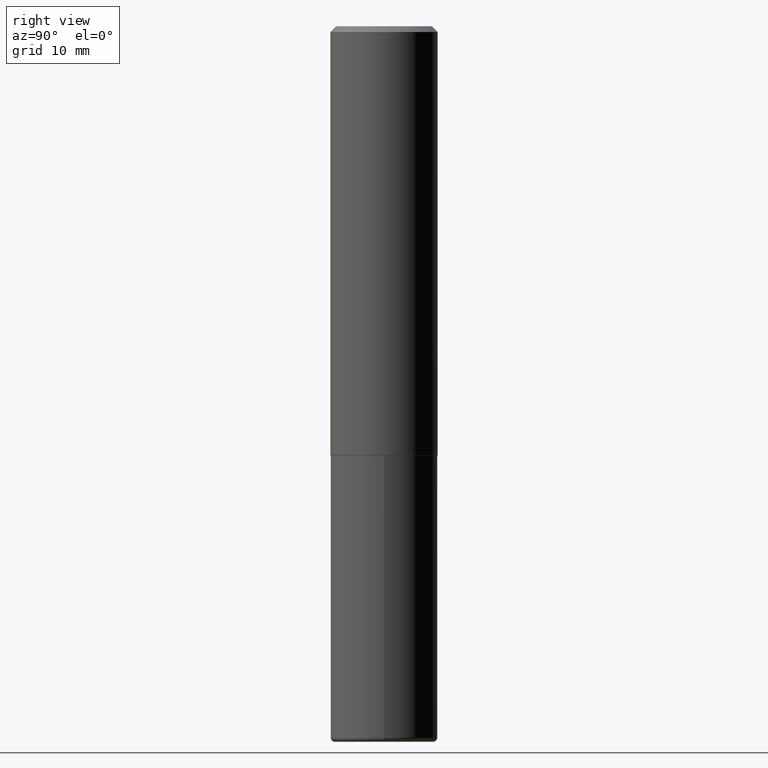
[diagram: clean part render]
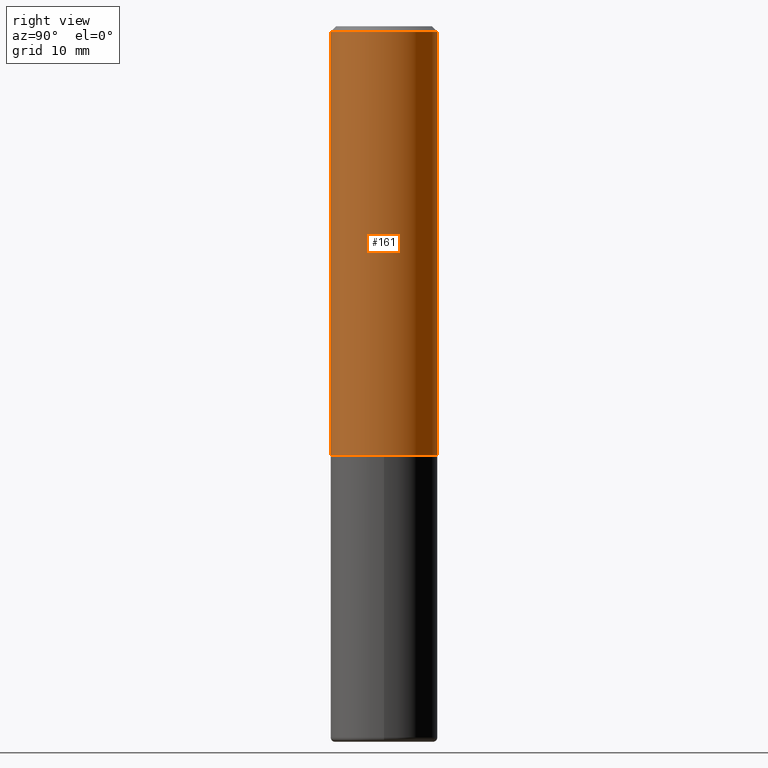
[diagram: same view with one face highlighted and labeled with its STEP entity id]
A machine part, right view. The second image highlights one B-rep face of the part: STEP entity #161.
In plain terms, the highlighted cylindrical surface (partial cylindrical patch) has radius 4.7625 mm, axis along (-0, 0, 1).
Its self-contained STEP definition (entity closure, byte-faithful):
#4 = DIRECTION ( 'NONE',  ( -2.444793606782976109E-29, 3.492448262817002669E-15, 1.000000000000000000 ) ) ;
#5 = DIRECTION ( 'NONE',  ( -2.444793606782976109E-29, 3.492448262817002669E-15, 1.000000000000000000 ) ) ;
#9 = ORIENTED_EDGE ( 'NONE', *, *, #224, .F. ) ;
#31 = VECTOR ( 'NONE', #362, 39.37007874015748143 ) ;
#40 = CARTESIAN_POINT ( 'NONE',  ( -1.309305502066175600E-15, -0.1875000000000000833, 6.548340492781882223E-16 ) ) ;
#44 = VERTEX_POINT ( 'NONE', #227 ) ;
#57 = CIRCLE ( 'NONE', #393, 0.1875000000000001943 ) ;
#81 = ORIENTED_EDGE ( 'NONE', *, *, #284, .F. ) ;
#98 = CARTESIAN_POINT ( 'NONE',  ( 0.000000000000000000, 0.000000000000000000, 0.000000000000000000 ) ) ;
#103 = DIRECTION ( 'NONE',  ( -6.982962677686265922E-15, -1.000000000000000000, 2.913971193241877611E-15 ) ) ;
#108 = CARTESIAN_POINT ( 'NONE',  ( 4.889587213565963568E-31, -6.984896525634020819E-17, -0.02000000000000004205 ) ) ;
#129 = LINE ( 'NONE', #237, #31 ) ;
#144 = AXIS2_PLACEMENT_3D ( 'NONE', #98, #4, #360 ) ;
#154 = VERTEX_POINT ( 'NONE', #210 ) ;
#161 = ADVANCED_FACE ( 'NONE', ( #203 ), #392, .T. ) ;
#163 = VECTOR ( 'NONE', #5, 39.37007874015748143 ) ;
#199 = AXIS2_PLACEMENT_3D ( 'NONE', #108, #357, #243 ) ;
#203 = FACE_OUTER_BOUND ( 'NONE', #404, .T. ) ;
#210 = CARTESIAN_POINT ( 'NONE',  ( 1.332267629550206781E-15, 0.1874999999999949485, -1.499000000000000554 ) ) ;
#215 = CARTESIAN_POINT ( 'NONE',  ( -1.286343374582161379E-15, -0.1875000000000000555, -0.01999999999999938979 ) ) ;
#220 = CARTESIAN_POINT ( 'NONE',  ( -1.309305502066139509E-15, -0.1875000000000054123, -1.498999999999999444 ) ) ;
#224 = EDGE_CURVE ( 'NONE', #312, #348, #296, .T. ) ;
#227 = CARTESIAN_POINT ( 'NONE',  ( 1.309305502066175205E-15, 0.1874999999999999167, -0.02000000000000069431 ) ) ;
#232 = EDGE_CURVE ( 'NONE', #154, #44, #129, .T. ) ;
#237 = CARTESIAN_POINT ( 'NONE',  ( 1.332267629550188243E-15, 0.1875000000000000833, -6.548340492781882223E-16 ) ) ;
#243 = DIRECTION ( 'NONE',  ( -6.982962677686266711E-15, -1.000000000000000000, 3.483106191921935949E-15 ) ) ;
#245 = ORIENTED_EDGE ( 'NONE', *, *, #232, .T. ) ;
#246 = EDGE_CURVE ( 'NONE', #312, #154, #57, .T. ) ;
#263 = CARTESIAN_POINT ( 'NONE',  ( 3.664745616567681106E-29, -5.235179945962687995E-15, -1.499000000000000110 ) ) ;
#284 = EDGE_CURVE ( 'NONE', #348, #44, #382, .T. ) ;
#296 = LINE ( 'NONE', #40, #163 ) ;
#304 = DIRECTION ( 'NONE',  ( -2.444793606782976109E-29, 3.492448262817002669E-15, 1.000000000000000000 ) ) ;
#312 = VERTEX_POINT ( 'NONE', #220 ) ;
#315 = ORIENTED_EDGE ( 'NONE', *, *, #246, .T. ) ;
#348 = VERTEX_POINT ( 'NONE', #215 ) ;
#357 = DIRECTION ( 'NONE',  ( -2.444793606782976109E-29, 3.492448262817002669E-15, 1.000000000000000000 ) ) ;
#360 = DIRECTION ( 'NONE',  ( -6.982962677686266711E-15, -1.000000000000000000, 3.492448262817002274E-15 ) ) ;
#362 = DIRECTION ( 'NONE',  ( -2.444793606782976109E-29, 3.492448262817002669E-15, 1.000000000000000000 ) ) ;
#382 = CIRCLE ( 'NONE', #199, 0.1874999999999999722 ) ;
#392 = CYLINDRICAL_SURFACE ( 'NONE', #144, 0.1875000000000000833 ) ;
#393 = AXIS2_PLACEMENT_3D ( 'NONE', #263, #304, #103 ) ;
#404 = EDGE_LOOP ( 'NONE', ( #315, #245, #81, #9 ) ) ;